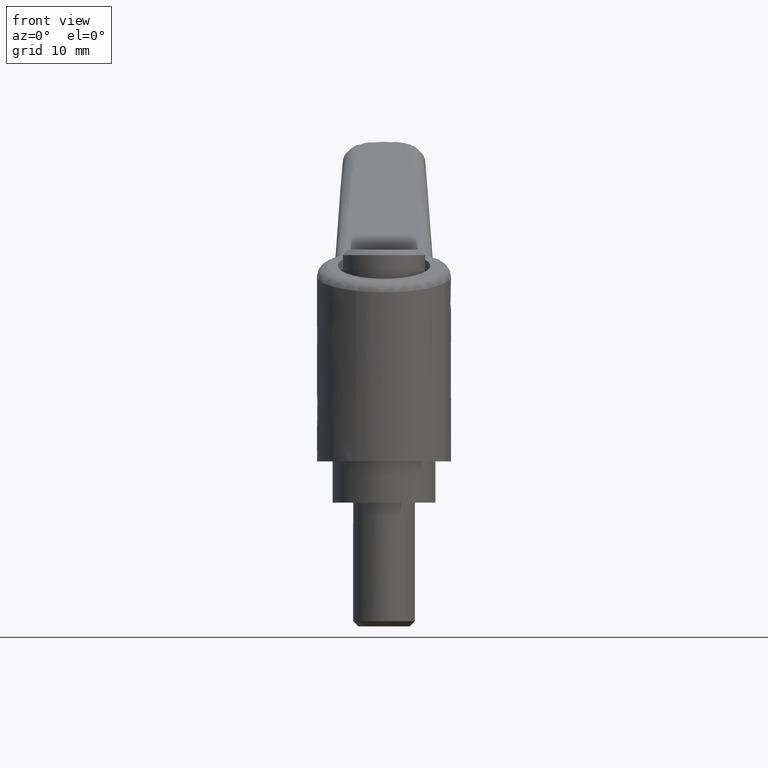
[diagram: clean part render]
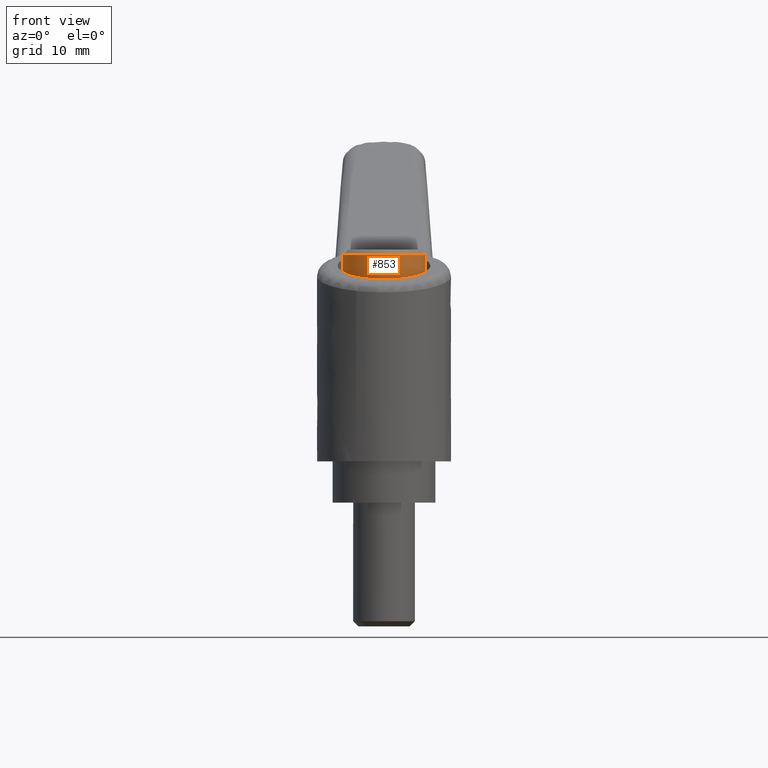
[diagram: same view with one face highlighted and labeled with its STEP entity id]
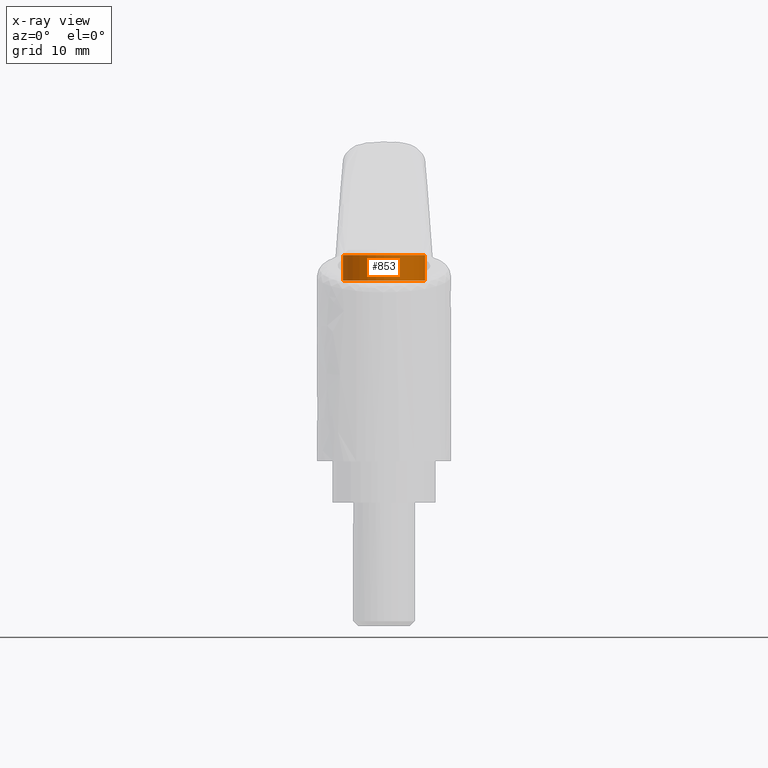
[diagram: x-ray of the same camera — body ghosted, the highlighted face saturated]
A machine part, front view. The second image highlights one B-rep face of the part: STEP entity #853.
The next image is the same camera in x-ray: the body ghosted, the highlighted face saturated — about 0% of this face is hidden behind the body in this view.
In plain terms, the highlighted face is a freeform B-spline surface patch.
Its self-contained STEP definition (entity closure, byte-faithful):
#671=CARTESIAN_POINT('',(3.744574315099964,1.406471897584035,24.0));
#672=VERTEX_POINT('',#671);
#688=CARTESIAN_POINT('',(0.244194158273808,-3.992539193696988,23.999999999964590));
#689=VERTEX_POINT('',#688);
#703=CARTESIAN_POINT('',(0.244194158219549,-3.992539193682567,21.500000000000000));
#704=VERTEX_POINT('',#703);
#705=CARTESIAN_POINT('',(0.244194158273808,-3.992539193696988,23.999999999964590));
#706=CARTESIAN_POINT('',(0.244194158219549,-3.992539193682567,21.500000000000000));
#707=QUASI_UNIFORM_CURVE('',1,(#705,#706),.UNSPECIFIED.,.F.,.U.);
#708=EDGE_CURVE('',#689,#704,#707,.T.);
#725=CARTESIAN_POINT('',(3.744574315098640,1.406471897587559,21.500000000000000));
#726=VERTEX_POINT('',#725);
#740=CARTESIAN_POINT('',(3.744574315099964,1.406471897584035,24.0));
#741=CARTESIAN_POINT('',(3.744574315098640,1.406471897587559,21.500000000000000));
#742=QUASI_UNIFORM_CURVE('',1,(#740,#741),.UNSPECIFIED.,.F.,.U.);
#743=EDGE_CURVE('',#672,#726,#742,.T.);
#748=CARTESIAN_POINT('',(0.244194158139428,-3.992539193687467,24.062500000000000));
#749=CARTESIAN_POINT('',(-3.748345035548039,-4.236733351826894,24.062499999999996));
#750=CARTESIAN_POINT('',(-3.992539193687467,-0.244194158139428,24.062500000000000));
#751=CARTESIAN_POINT('',(-4.236733351826894,3.748345035548039,24.062499999999996));
#752=CARTESIAN_POINT('',(-0.244194158139428,3.992539193687467,24.062500000000000));
#753=CARTESIAN_POINT('',(2.705478327212261,4.172948891477367,24.062499999999996));
#754=CARTESIAN_POINT('',(3.744574315106628,1.406471897566288,24.062500000000004));
#755=CARTESIAN_POINT('',(0.244194158139428,-3.992539193687467,21.435937499999991));
#756=CARTESIAN_POINT('',(-3.748345035548039,-4.236733351826894,21.435937500000001));
#757=CARTESIAN_POINT('',(-3.992539193687467,-0.244194158139428,21.435937499999991));
#758=CARTESIAN_POINT('',(-4.236733351826894,3.748345035548039,21.435937500000001));
#759=CARTESIAN_POINT('',(-0.244194158139428,3.992539193687467,21.435937499999991));
#760=CARTESIAN_POINT('',(2.705478327212261,4.172948891477367,21.435937499999991));
#761=CARTESIAN_POINT('',(3.744574315106628,1.406471897566288,21.435937499999994));
#769=(BOUNDED_SURFACE()B_SPLINE_SURFACE(2,1,((#748,#755),(#749,#756),(#750,#757),(#751,#758),(#752,#759),(#753,#760),(#754,#761)),.UNSPECIFIED.,.F.,.F.,.U.)B_SPLINE_SURFACE_WITH_KNOTS((3,2,2,3),(2,2),(0.0,6.627416997969518,13.254833995939039,18.556767594314650),(0.0,2.626562500000009),.UNSPECIFIED.)GEOMETRIC_REPRESENTATION_ITEM()RATIONAL_B_SPLINE_SURFACE(((1.0,1.0),(0.707106781186548,0.707106781186548),(1.0,1.0),(0.707106781186548,0.707106781186548),(1.0,1.0),(0.765685424949238,0.765685424949238),(0.906274169979695,0.906274169979695)))REPRESENTATION_ITEM('')SURFACE());
#770=CARTESIAN_POINT('',(-0.472136938757303,3.972038105455840,23.999999999983459));
#771=VERTEX_POINT('',#770);
#772=CARTESIAN_POINT('',(-0.472136938757303,3.972038105455840,23.999999999983462));
#773=CARTESIAN_POINT('',(-0.236896478737314,4.000000000000001,23.999999999999996));
#774=CARTESIAN_POINT('',(0.0,4.0,24.0));
#775=CARTESIAN_POINT('',(2.770438382749628,4.0,24.000000000000007));
#776=CARTESIAN_POINT('',(3.744574315099964,1.406471897584035,23.999999999999993));
#784=(BOUNDED_CURVE()B_SPLINE_CURVE(2,(#772,#773,#774,#775,#776),.UNSPECIFIED.,.F.,.U.)B_SPLINE_CURVE_WITH_KNOTS((3,2,3),(0.229562473504725,0.250000000000000,0.440284170897412),.UNSPECIFIED.)CURVE()GEOMETRIC_REPRESENTATION_ITEM()RATIONAL_B_SPLINE_CURVE((0.956026754166483,0.976055948320855,1.0,0.777068226786432,0.893499554633933))REPRESENTATION_ITEM(''));
#785=EDGE_CURVE('',#771,#672,#784,.T.);
#786=ORIENTED_EDGE('',*,*,#785,.T.);
#787=ORIENTED_EDGE('',*,*,#743,.T.);
#788=CARTESIAN_POINT('',(-4.0,0.0,21.500000000000000));
#789=VERTEX_POINT('',#788);
#790=CARTESIAN_POINT('',(-4.0,0.0,21.500000000000000));
#791=CARTESIAN_POINT('',(-4.000000000000000,4.000000000000000,21.499999999999996));
#792=CARTESIAN_POINT('',(0.0,4.0,21.500000000000000));
#793=CARTESIAN_POINT('',(2.770438382744058,4.000000000000001,21.499999999999996));
#794=CARTESIAN_POINT('',(3.744574315098640,1.406471897587559,21.500000000000000));
#802=(BOUNDED_CURVE()B_SPLINE_CURVE(2,(#790,#791,#792,#793,#794),.UNSPECIFIED.,.F.,.U.)B_SPLINE_CURVE_WITH_KNOTS((3,2,3),(0.0,0.250000000000000,0.440284170897115),.UNSPECIFIED.)CURVE()GEOMETRIC_REPRESENTATION_ITEM()RATIONAL_B_SPLINE_CURVE((1.0,0.707106781186548,1.0,0.777068226786780,0.893499554633570))REPRESENTATION_ITEM(''));
#803=EDGE_CURVE('',#789,#726,#802,.T.);
#804=ORIENTED_EDGE('',*,*,#803,.F.);
#805=CARTESIAN_POINT('',(0.244194158219549,-3.992539193682566,21.499999999999996));
#806=CARTESIAN_POINT('',(0.122211053274701,-4.0,21.500000000000000));
#807=CARTESIAN_POINT('',(0.0,-4.0,21.500000000000000));
#808=CARTESIAN_POINT('',(-4.000000000000000,-4.000000000000000,21.499999999999996));
#809=CARTESIAN_POINT('',(-4.0,0.0,21.500000000000000));
#817=(BOUNDED_CURVE()B_SPLINE_CURVE(2,(#805,#806,#807,#808,#809),.UNSPECIFIED.,.F.,.U.)B_SPLINE_CURVE_WITH_KNOTS((3,2,3),(0.739332962235043,0.750000000000000,1.0),.UNSPECIFIED.)CURVE()GEOMETRIC_REPRESENTATION_ITEM()RATIONAL_B_SPLINE_CURVE((0.976072041658360,0.987502787895268,1.0,0.707106781186548,1.0))REPRESENTATION_ITEM(''));
#818=EDGE_CURVE('',#704,#789,#817,.T.);
#819=ORIENTED_EDGE('',*,*,#818,.F.);
#820=ORIENTED_EDGE('',*,*,#708,.F.);
#821=CARTESIAN_POINT('',(-4.0,0.0,24.0));
#822=VERTEX_POINT('',#821);
#823=CARTESIAN_POINT('',(0.244194158273808,-3.992539193696989,23.999999999964583));
#824=CARTESIAN_POINT('',(0.122211053461700,-4.0,24.0));
#825=CARTESIAN_POINT('',(0.0,-4.0,24.0));
#826=CARTESIAN_POINT('',(-4.000000000000000,-4.000000000000000,23.999999999999996));
#827=CARTESIAN_POINT('',(-4.0,0.0,24.0));
#835=(BOUNDED_CURVE()B_SPLINE_CURVE(2,(#823,#824,#825,#826,#827),.UNSPECIFIED.,.F.,.U.)B_SPLINE_CURVE_WITH_KNOTS((3,2,3),(0.739332962218925,0.750000000000000,1.0),.UNSPECIFIED.)CURVE()GEOMETRIC_REPRESENTATION_ITEM()RATIONAL_B_SPLINE_CURVE((0.976072041623816,0.987502787876385,1.0,0.707106781186548,1.0))REPRESENTATION_ITEM(''));
#836=EDGE_CURVE('',#689,#822,#835,.T.);
#837=ORIENTED_EDGE('',*,*,#836,.T.);
#838=CARTESIAN_POINT('',(-4.0,0.0,24.0));
#839=CARTESIAN_POINT('',(-4.000000000000000,3.552698103574314,23.999999999999996));
#840=CARTESIAN_POINT('',(-0.472136938757303,3.972038105455840,23.999999999983455));
#848=(BOUNDED_CURVE()B_SPLINE_CURVE(2,(#838,#839,#840),.UNSPECIFIED.,.F.,.U.)B_SPLINE_CURVE_WITH_KNOTS((3,3),(0.0,0.229562473504725),.UNSPECIFIED.)CURVE()GEOMETRIC_REPRESENTATION_ITEM()RATIONAL_B_SPLINE_CURVE((1.0,0.731050832865693,0.956026754166483))REPRESENTATION_ITEM(''));
#849=EDGE_CURVE('',#822,#771,#848,.T.);
#850=ORIENTED_EDGE('',*,*,#849,.T.);
#851=EDGE_LOOP('',(#786,#787,#804,#819,#820,#837,#850));
#852=FACE_OUTER_BOUND('',#851,.T.);
#853=ADVANCED_FACE('',(#852),#769,.T.);